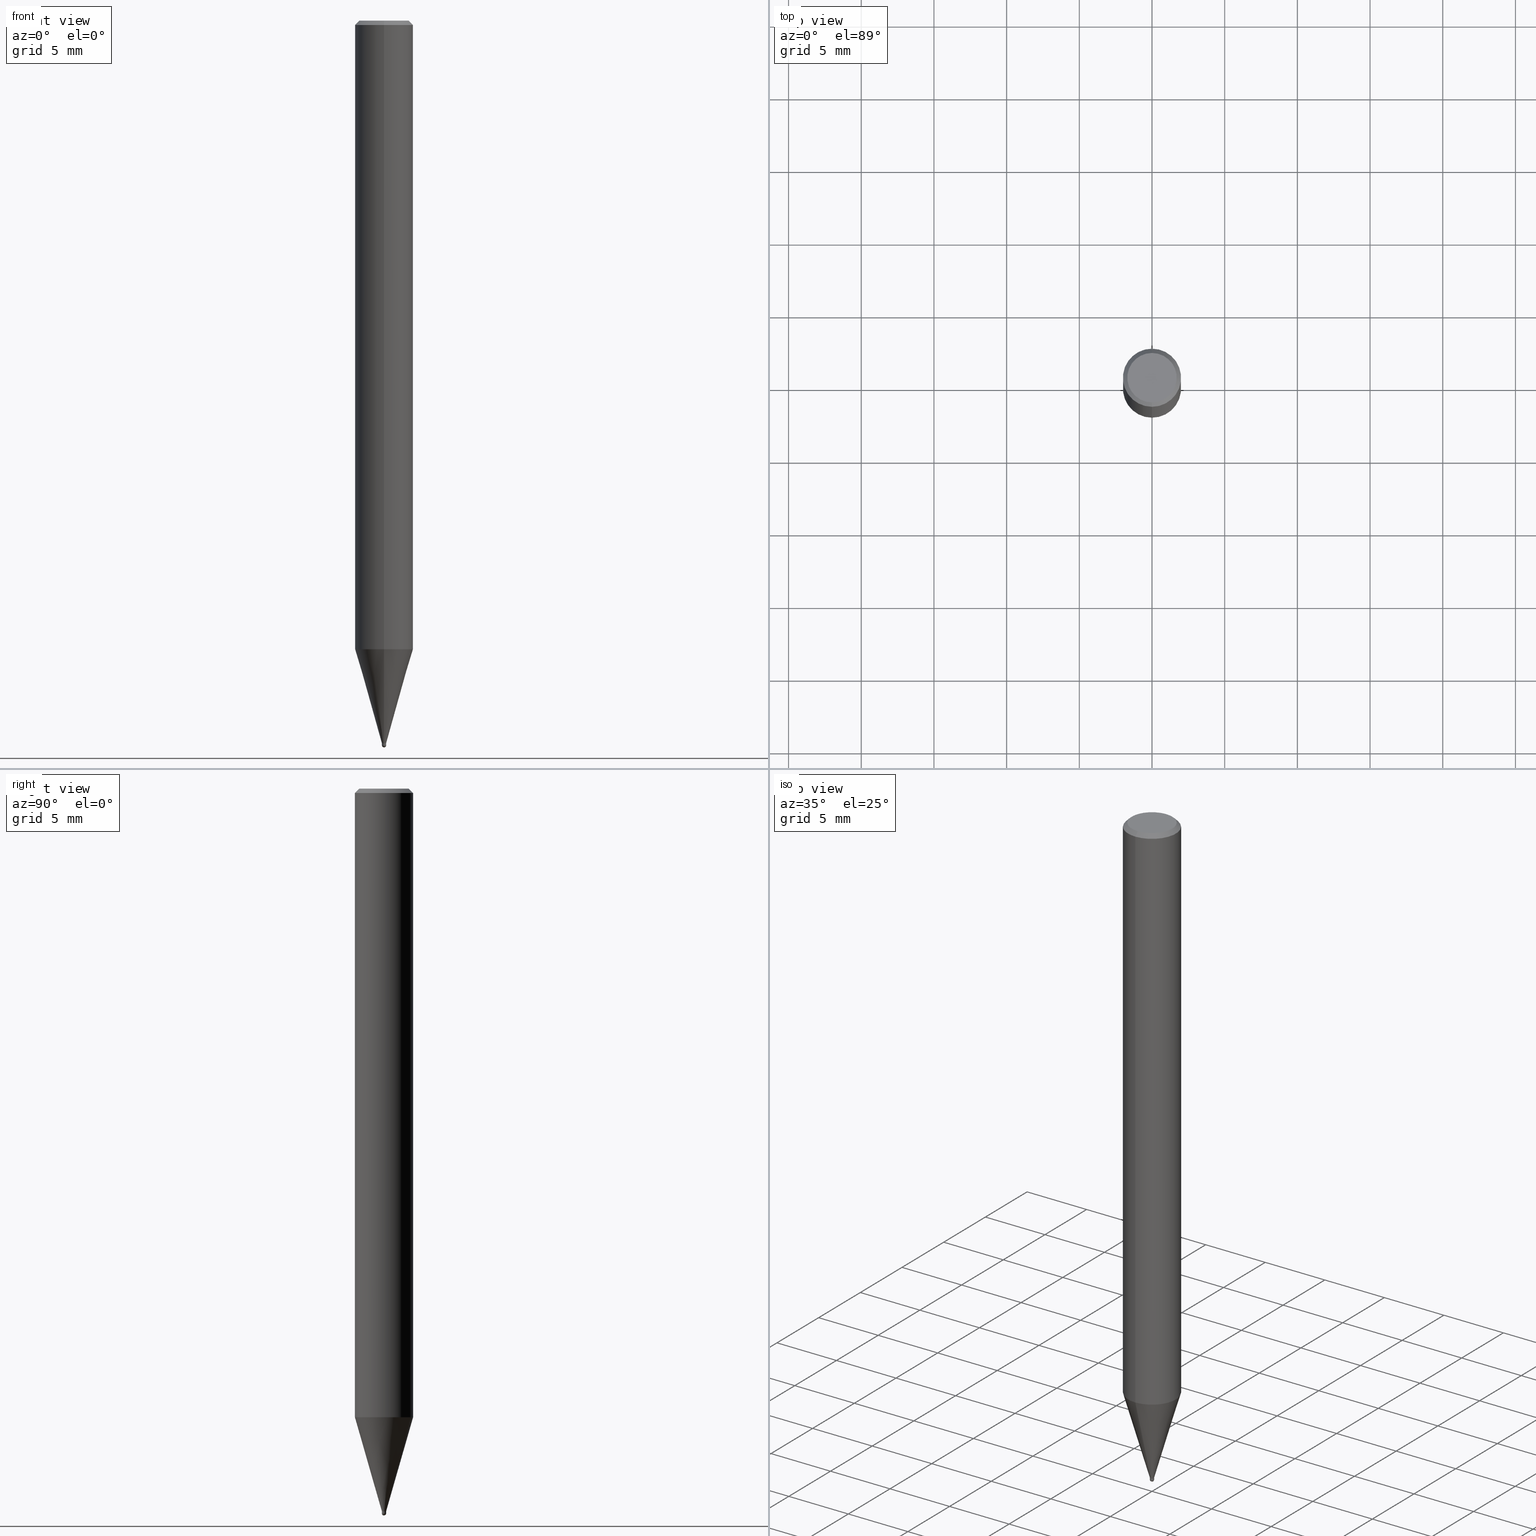
[diagram: canonical four-view strip — front | top / right | iso, engineering-drawing reading convention]
A machine part, canonical four-view strip (front | top / right | iso — engineering-drawing reading convention). The complete STEP part file that produces these views, byte-faithful:
ISO-10303-21;
HEADER;
FILE_DESCRIPTION(('no description'),'unknown implementation level');
FILE_NAME('HSB2003-0030-Huellk.stp','  ',('CIMSOURCE GmbH'),('CADClick - KiM GmbH - www.kimweb.de'),'unknown preprocess','ACIS','unknown authorization');
FILE_SCHEMA(('automotive_design'));
ENDSEC;
DATA;
#1=MECHANICAL_DESIGN_GEOMETRIC_PRESENTATION_REPRESENTATION(' ',(#14,#15,#16,#17,#18,#19,#20,#21,#22,#23,#24,#25,#26,#27,#28,#29,#30,#31,#32,#33,#34,#35,#36,#37,#38,#39,#40,#41,#42,#43,#44,#45,#46,#47,#48,#49,#50,#51,#52,#53,#54,#55,#56,#57,#58,#59,#60,#61,#62,#63,#64,#65,#66),#10);
#2=PRODUCT_DEFINITION_CONTEXT('',#67,'design');
#3=APPLICATION_PROTOCOL_DEFINITION('INTERNATIONAL STANDARD','automotive_design',1994,#67);
#4=PRODUCT_CATEGORY_RELATIONSHIP('NONE','NONE',#68,#69);
#5=SHAPE_DEFINITION_REPRESENTATION(#70,#71);
#6=PRODUCT_DEFINITION_CONTEXT('',#72,'design');
#7=APPLICATION_PROTOCOL_DEFINITION('INTERNATIONAL STANDARD','automotive_design',1994,#72);
#8=PRODUCT_CATEGORY_RELATIONSHIP('NONE','NONE',#73,#74);
#9=SHAPE_DEFINITION_REPRESENTATION(#75,#76);
#10= (GEOMETRIC_REPRESENTATION_CONTEXT(3)GLOBAL_UNCERTAINTY_ASSIGNED_CONTEXT((#79))GLOBAL_UNIT_ASSIGNED_CONTEXT((#81,#82,#83))REPRESENTATION_CONTEXT('NONE','WORKSPACE'));
#14=STYLED_ITEM('',(#85),#86);
#15=STYLED_ITEM('',(#87),#88);
#16=STYLED_ITEM('',(#89),#90);
#17=STYLED_ITEM('',(#91),#92);
#18=STYLED_ITEM('',(#93),#94);
#19=STYLED_ITEM('',(#95),#96);
#20=STYLED_ITEM('',(#97),#98);
#21=STYLED_ITEM('',(#99),#100);
#22=STYLED_ITEM('',(#101),#102);
#23=STYLED_ITEM('',(#103),#104);
#24=STYLED_ITEM('',(#105),#106);
#25=STYLED_ITEM('',(#107),#108);
#26=STYLED_ITEM('',(#109),#110);
#27=STYLED_ITEM('',(#111),#112);
#28=STYLED_ITEM('',(#113),#114);
#29=STYLED_ITEM('',(#115),#116);
#30=STYLED_ITEM('',(#117),#118);
#31=STYLED_ITEM('',(#119),#120);
#32=STYLED_ITEM('',(#121),#122);
#33=STYLED_ITEM('',(#123),#124);
#34=STYLED_ITEM('',(#125),#126);
#35=STYLED_ITEM('',(#127),#128);
#36=STYLED_ITEM('',(#129),#130);
#37=STYLED_ITEM('',(#131),#132);
#38=STYLED_ITEM('',(#133),#134);
#39=STYLED_ITEM('',(#135),#136);
#40=STYLED_ITEM('',(#137),#138);
#41=STYLED_ITEM('',(#139),#140);
#42=STYLED_ITEM('',(#141),#142);
#43=STYLED_ITEM('',(#143),#144);
#44=STYLED_ITEM('',(#145),#146);
#45=STYLED_ITEM('',(#147),#148);
#46=STYLED_ITEM('',(#149),#150);
#47=STYLED_ITEM('',(#151),#152);
#48=STYLED_ITEM('',(#153),#154);
#49=STYLED_ITEM('',(#155),#156);
#50=STYLED_ITEM('',(#157),#158);
#51=STYLED_ITEM('',(#159),#160);
#52=STYLED_ITEM('',(#161),#162);
#53=STYLED_ITEM('',(#163),#164);
#54=STYLED_ITEM('',(#165),#166);
#55=STYLED_ITEM('',(#167),#168);
#56=STYLED_ITEM('',(#169),#170);
#57=STYLED_ITEM('',(#171),#172);
#58=STYLED_ITEM('',(#173),#174);
#59=STYLED_ITEM('',(#175),#176);
#60=STYLED_ITEM('',(#177),#178);
#61=STYLED_ITEM('',(#179),#180);
#62=STYLED_ITEM('',(#181),#182);
#63=STYLED_ITEM('',(#183),#184);
#64=STYLED_ITEM('',(#185),#186);
#65=STYLED_ITEM('',(#187),#188);
#66=STYLED_ITEM('',(#189),#190);
#67=APPLICATION_CONTEXT(' ');
#68=PRODUCT_CATEGORY('part','NONE');
#69=PRODUCT_RELATED_PRODUCT_CATEGORY('detail',' ',(#191));
#70=PRODUCT_DEFINITION_SHAPE('NONE','NONE',#192);
#71=ADVANCED_BREP_SHAPE_REPRESENTATION('1',(#186,#193),#10);
#72=APPLICATION_CONTEXT(' ');
#73=PRODUCT_CATEGORY('part','NONE');
#74=PRODUCT_RELATED_PRODUCT_CATEGORY('detail',' ',(#194));
#75=PRODUCT_DEFINITION_SHAPE('NONE','NONE',#195);
#76=ADVANCED_BREP_SHAPE_REPRESENTATION('2',(#92,#196),#10);
#79=UNCERTAINTY_MEASURE_WITH_UNIT(LENGTH_MEASURE(1.0E-006),#81,'','');
#81= (CONVERSION_BASED_UNIT('MILLIMETRE',#199)LENGTH_UNIT()NAMED_UNIT(#202));
#82= (NAMED_UNIT(#204)PLANE_ANGLE_UNIT()SI_UNIT($,.RADIAN.));
#83= (NAMED_UNIT(#204)SOLID_ANGLE_UNIT()SI_UNIT($,.STERADIAN.));
#85=PRESENTATION_STYLE_ASSIGNMENT((#210));
#86=ADVANCED_FACE('',(#211),#212,.T.);
#87=PRESENTATION_STYLE_ASSIGNMENT((#213));
#88=ADVANCED_FACE('',(#214),#215,.T.);
#89=PRESENTATION_STYLE_ASSIGNMENT((#216));
#90=EDGE_CURVE('',#118,#154,#217,.T.);
#91=PRESENTATION_STYLE_ASSIGNMENT((#218));
#92=MANIFOLD_SOLID_BREP('2',#219);
#93=PRESENTATION_STYLE_ASSIGNMENT((#220));
#94=EDGE_CURVE('',#164,#182,#221,.T.);
#95=PRESENTATION_STYLE_ASSIGNMENT((#222));
#96=ADVANCED_FACE('',(#223),#224,.T.);
#97=PRESENTATION_STYLE_ASSIGNMENT((#225));
#98=EDGE_CURVE('',#182,#126,#226,.T.);
#99=PRESENTATION_STYLE_ASSIGNMENT((#227));
#100=ADVANCED_FACE('',(#228),#229,.T.);
#101=PRESENTATION_STYLE_ASSIGNMENT((#230));
#102=EDGE_CURVE('',#160,#118,#231,.T.);
#103=PRESENTATION_STYLE_ASSIGNMENT((#232));
#104=VERTEX_POINT('',#233);
#105=PRESENTATION_STYLE_ASSIGNMENT((#234));
#106=EDGE_CURVE('',#108,#126,#235,.T.);
#107=PRESENTATION_STYLE_ASSIGNMENT((#236));
#108=VERTEX_POINT('',#237);
#109=PRESENTATION_STYLE_ASSIGNMENT((#238));
#110=VERTEX_POINT('',#239);
#111=PRESENTATION_STYLE_ASSIGNMENT((#240));
#112=ADVANCED_FACE('',(#241,#242),#243,.T.);
#113=PRESENTATION_STYLE_ASSIGNMENT((#244));
#114=EDGE_CURVE('',#178,#122,#245,.T.);
#115=PRESENTATION_STYLE_ASSIGNMENT((#246));
#116=EDGE_CURVE('',#160,#130,#247,.T.);
#117=PRESENTATION_STYLE_ASSIGNMENT((#248));
#118=VERTEX_POINT('',#249);
#119=PRESENTATION_STYLE_ASSIGNMENT((#250));
#120=EDGE_CURVE('',#126,#108,#251,.T.);
#121=PRESENTATION_STYLE_ASSIGNMENT((#252));
#122=VERTEX_POINT('',#253);
#123=PRESENTATION_STYLE_ASSIGNMENT((#254));
#124=EDGE_CURVE('',#136,#110,#255,.T.);
#125=PRESENTATION_STYLE_ASSIGNMENT((#256));
#126=VERTEX_POINT('',#257);
#127=PRESENTATION_STYLE_ASSIGNMENT((#258));
#128=EDGE_CURVE('',#154,#118,#259,.T.);
#129=PRESENTATION_STYLE_ASSIGNMENT((#260));
#130=VERTEX_POINT('',#261);
#131=PRESENTATION_STYLE_ASSIGNMENT((#262));
#132=EDGE_CURVE('',#110,#104,#263,.T.);
#133=PRESENTATION_STYLE_ASSIGNMENT((#264));
#134=EDGE_CURVE('',#136,#150,#265,.T.);
#135=PRESENTATION_STYLE_ASSIGNMENT((#266));
#136=VERTEX_POINT('',#267);
#137=PRESENTATION_STYLE_ASSIGNMENT((#268));
#138=ADVANCED_FACE('',(#269),#270,.T.);
#139=PRESENTATION_STYLE_ASSIGNMENT((#271));
#140=ADVANCED_FACE('',(#272),#273,.T.);
#141=PRESENTATION_STYLE_ASSIGNMENT((#274));
#142=ADVANCED_FACE('',(#275),#276,.T.);
#143=PRESENTATION_STYLE_ASSIGNMENT((#277));
#144=EDGE_CURVE('',#178,#136,#278,.T.);
#145=PRESENTATION_STYLE_ASSIGNMENT((#279));
#146=EDGE_CURVE('',#104,#150,#280,.T.);
#147=PRESENTATION_STYLE_ASSIGNMENT((#281));
#148=ADVANCED_FACE('',(#282),#283,.T.);
#149=PRESENTATION_STYLE_ASSIGNMENT((#284));
#150=VERTEX_POINT('',#285);
#151=PRESENTATION_STYLE_ASSIGNMENT((#286));
#152=EDGE_CURVE('',#182,#164,#287,.T.);
#153=PRESENTATION_STYLE_ASSIGNMENT((#288));
#154=VERTEX_POINT('',#289);
#155=PRESENTATION_STYLE_ASSIGNMENT((#290));
#156=EDGE_CURVE('',#150,#136,#291,.T.);
#157=PRESENTATION_STYLE_ASSIGNMENT((#292));
#158=EDGE_CURVE('',#160,#130,#293,.T.);
#159=PRESENTATION_STYLE_ASSIGNMENT((#294));
#160=VERTEX_POINT('',#295);
#161=PRESENTATION_STYLE_ASSIGNMENT((#296));
#162=ADVANCED_FACE('',(#297),#298,.T.);
#163=PRESENTATION_STYLE_ASSIGNMENT((#299));
#164=VERTEX_POINT('',#300);
#165=PRESENTATION_STYLE_ASSIGNMENT((#301));
#166=EDGE_CURVE('',#154,#130,#302,.T.);
#167=PRESENTATION_STYLE_ASSIGNMENT((#303));
#168=EDGE_CURVE('',#130,#160,#304,.T.);
#169=PRESENTATION_STYLE_ASSIGNMENT((#305));
#170=ADVANCED_FACE('',(#306),#307,.T.);
#171=PRESENTATION_STYLE_ASSIGNMENT((#308));
#172=ADVANCED_FACE('',(#309),#310,.T.);
#173=PRESENTATION_STYLE_ASSIGNMENT((#311));
#174=ADVANCED_FACE('',(#312),#313,.T.);
#175=PRESENTATION_STYLE_ASSIGNMENT((#314));
#176=EDGE_CURVE('',#108,#164,#315,.T.);
#177=PRESENTATION_STYLE_ASSIGNMENT((#316));
#178=VERTEX_POINT('',#317);
#179=PRESENTATION_STYLE_ASSIGNMENT((#318));
#180=EDGE_CURVE('',#104,#110,#319,.T.);
#181=PRESENTATION_STYLE_ASSIGNMENT((#320));
#182=VERTEX_POINT('',#321);
#183=PRESENTATION_STYLE_ASSIGNMENT((#322));
#184=EDGE_CURVE('',#150,#122,#323,.T.);
#185=PRESENTATION_STYLE_ASSIGNMENT((#324));
#186=MANIFOLD_SOLID_BREP('1',#325);
#187=PRESENTATION_STYLE_ASSIGNMENT((#326));
#188=EDGE_CURVE('',#122,#178,#327,.T.);
#189=PRESENTATION_STYLE_ASSIGNMENT((#328));
#190=ADVANCED_FACE('',(#329),#330,.T.);
#191=PRODUCT('1','1','PART-1-DESC',(#331));
#192=PRODUCT_DEFINITION('NONE','NONE',#332,#2);
#193=AXIS2_PLACEMENT_3D('',#333,#334,#335);
#194=PRODUCT('2','2','PART-2-DESC',(#336));
#195=PRODUCT_DEFINITION('NONE','NONE',#337,#6);
#196=AXIS2_PLACEMENT_3D('',#338,#339,#340);
#199=LENGTH_MEASURE_WITH_UNIT(LENGTH_MEASURE(1.0),#341);
#202=DIMENSIONAL_EXPONENTS(1.0,0.0,0.0,0.0,0.0,0.0,0.0);
#204=DIMENSIONAL_EXPONENTS(0.0,0.0,0.0,0.0,0.0,0.0,0.0);
#210=SURFACE_STYLE_USAGE(.BOTH.,#342);
#211=FACE_OUTER_BOUND('',#343,.T.);
#212=CONICAL_SURFACE('',#344,0.14995,0.000666666567901188);
#213=SURFACE_STYLE_USAGE(.BOTH.,#345);
#214=FACE_OUTER_BOUND('',#346,.T.);
#215=CYLINDRICAL_SURFACE('',#347,2.0);
#216=CURVE_STYLE('',#348,POSITIVE_LENGTH_MEASURE(1.0E-006),#349);
#217=CIRCLE('',#350,0.1499);
#218=SURFACE_STYLE_USAGE(.BOTH.,#351);
#219=CLOSED_SHELL('',(#100,#172,#96,#86,#174));
#220=CURVE_STYLE('',#352,POSITIVE_LENGTH_MEASURE(1.0E-006),#353);
#221=CIRCLE('',#354,1.99995);
#222=SURFACE_STYLE_USAGE(.BOTH.,#355);
#223=FACE_OUTER_BOUND('',#356,.T.);
#224=PLANE('',#357);
#225=CURVE_STYLE('',#358,POSITIVE_LENGTH_MEASURE(1.0E-006),#359);
#226=LINE('',#360,#361);
#227=SURFACE_STYLE_USAGE(.BOTH.,#362);
#228=FACE_OUTER_BOUND('',#363,.T.);
#229=SPHERICAL_SURFACE('',#364,0.15);
#230=CURVE_STYLE('',#365,POSITIVE_LENGTH_MEASURE(1.0E-006),#366);
#231=LINE('',#367,#368);
#232=POINT_STYLE(' ',#369,POSITIVE_LENGTH_MEASURE(1.0E-006),#370);
#233=CARTESIAN_POINT('',(0.0,1.7,0.0));
#234=CURVE_STYLE('',#371,POSITIVE_LENGTH_MEASURE(1.0E-006),#372);
#235=CIRCLE('',#373,0.14995);
#236=POINT_STYLE(' ',#374,POSITIVE_LENGTH_MEASURE(1.0E-006),#375);
#237=CARTESIAN_POINT('',(1.83629722755666E-017,-0.14995,-49.7));
#238=POINT_STYLE(' ',#376,POSITIVE_LENGTH_MEASURE(1.0E-006),#377);
#239=CARTESIAN_POINT('',(2.08183080149804E-016,-1.7,0.0));
#240=SURFACE_STYLE_USAGE(.BOTH.,#378);
#241=FACE_OUTER_BOUND('',#379,.T.);
#242=FACE_BOUND('',#380,.T.);
#243=PLANE('',#381);
#244=CURVE_STYLE('',#382,POSITIVE_LENGTH_MEASURE(1.0E-006),#383);
#245=CIRCLE('',#384,2.0);
#246=CURVE_STYLE('',#385,POSITIVE_LENGTH_MEASURE(1.0E-006),#386);
#247=CIRCLE('',#387,0.15);
#248=POINT_STYLE(' ',#388,POSITIVE_LENGTH_MEASURE(1.0E-006),#389);
#249=CARTESIAN_POINT('',(1.83568492437974E-017,-0.1499,-49.7));
#250=CURVE_STYLE('',#390,POSITIVE_LENGTH_MEASURE(1.0E-006),#391);
#251=CIRCLE('',#392,0.14995);
#252=POINT_STYLE(' ',#393,POSITIVE_LENGTH_MEASURE(1.0E-006),#394);
#253=CARTESIAN_POINT('',(0.0,2.0,-43.248));
#254=CURVE_STYLE('',#395,POSITIVE_LENGTH_MEASURE(1.0E-006),#396);
#255=LINE('',#397,#398);
#256=POINT_STYLE(' ',#399,POSITIVE_LENGTH_MEASURE(1.0E-006),#400);
#257=CARTESIAN_POINT('',(0.0,0.14995,-49.7));
#258=CURVE_STYLE('',#401,POSITIVE_LENGTH_MEASURE(1.0E-006),#402);
#259=CIRCLE('',#403,0.1499);
#260=POINT_STYLE(' ',#404,POSITIVE_LENGTH_MEASURE(1.0E-006),#405);
#261=CARTESIAN_POINT('',(0.0,0.15,-49.85));
#262=CURVE_STYLE('',#406,POSITIVE_LENGTH_MEASURE(1.0E-006),#407);
#263=CIRCLE('',#408,1.7);
#264=CURVE_STYLE('',#409,POSITIVE_LENGTH_MEASURE(1.0E-006),#410);
#265=CIRCLE('',#411,2.0);
#266=POINT_STYLE(' ',#412,POSITIVE_LENGTH_MEASURE(1.0E-006),#413);
#267=CARTESIAN_POINT('',(2.44921270764475E-016,-2.0,-0.299999999999997));
#268=SURFACE_STYLE_USAGE(.BOTH.,#414);
#269=FACE_OUTER_BOUND('',#415,.T.);
#270=PLANE('',#416);
#271=SURFACE_STYLE_USAGE(.BOTH.,#417);
#272=FACE_OUTER_BOUND('',#418,.T.);
#273=PLANE('',#419);
#274=SURFACE_STYLE_USAGE(.BOTH.,#420);
#275=FACE_OUTER_BOUND('',#421,.T.);
#276=CYLINDRICAL_SURFACE('',#422,2.0);
#277=CURVE_STYLE('',#423,POSITIVE_LENGTH_MEASURE(1.0E-006),#424);
#278=LINE('',#425,#426);
#279=CURVE_STYLE('',#427,POSITIVE_LENGTH_MEASURE(1.0E-006),#428);
#280=LINE('',#429,#430);
#281=SURFACE_STYLE_USAGE(.BOTH.,#431);
#282=FACE_OUTER_BOUND('',#432,.T.);
#283=CONICAL_SURFACE('',#433,1.85,0.785398163397453);
#284=POINT_STYLE(' ',#434,POSITIVE_LENGTH_MEASURE(1.0E-006),#435);
#285=CARTESIAN_POINT('',(0.0,2.0,-0.299999999999997));
#286=CURVE_STYLE('',#436,POSITIVE_LENGTH_MEASURE(1.0E-006),#437);
#287=CIRCLE('',#438,1.99995);
#288=POINT_STYLE(' ',#439,POSITIVE_LENGTH_MEASURE(1.0E-006),#440);
#289=CARTESIAN_POINT('',(0.0,0.1499,-49.7));
#290=CURVE_STYLE('',#441,POSITIVE_LENGTH_MEASURE(1.0E-006),#442);
#291=CIRCLE('',#443,2.0);
#292=CURVE_STYLE('',#444,POSITIVE_LENGTH_MEASURE(1.0E-006),#445);
#293=CIRCLE('',#446,0.15);
#294=POINT_STYLE(' ',#447,POSITIVE_LENGTH_MEASURE(1.0E-006),#448);
#295=CARTESIAN_POINT('',(1.83690953073357E-017,-0.15,-49.85));
#296=SURFACE_STYLE_USAGE(.BOTH.,#449);
#297=FACE_OUTER_BOUND('',#450,.T.);
#298=CONICAL_SURFACE('',#451,1.07495,0.279241047070178);
#299=POINT_STYLE(' ',#452,POSITIVE_LENGTH_MEASURE(1.0E-006),#453);
#300=CARTESIAN_POINT('',(2.44915147732706E-016,-1.99995,-43.248));
#301=CURVE_STYLE('',#454,POSITIVE_LENGTH_MEASURE(1.0E-006),#455);
#302=LINE('',#456,#457);
#303=CURVE_STYLE('',#458,POSITIVE_LENGTH_MEASURE(1.0E-006),#459);
#304=CIRCLE('',#460,0.15);
#305=SURFACE_STYLE_USAGE(.BOTH.,#461);
#306=FACE_OUTER_BOUND('',#462,.T.);
#307=CONICAL_SURFACE('',#463,1.07495,0.279241047070178);
#308=SURFACE_STYLE_USAGE(.BOTH.,#464);
#309=FACE_OUTER_BOUND('',#465,.T.);
#310=CONICAL_SURFACE('',#466,0.14995,0.000666666567901188);
#311=SURFACE_STYLE_USAGE(.BOTH.,#467);
#312=FACE_OUTER_BOUND('',#468,.T.);
#313=SPHERICAL_SURFACE('',#469,0.15);
#314=CURVE_STYLE('',#470,POSITIVE_LENGTH_MEASURE(1.0E-006),#471);
#315=LINE('',#472,#473);
#316=POINT_STYLE(' ',#474,POSITIVE_LENGTH_MEASURE(1.0E-006),#475);
#317=CARTESIAN_POINT('',(2.44921270764475E-016,-2.0,-43.248));
#318=CURVE_STYLE('',#476,POSITIVE_LENGTH_MEASURE(1.0E-006),#477);
#319=CIRCLE('',#478,1.7);
#320=POINT_STYLE(' ',#479,POSITIVE_LENGTH_MEASURE(1.0E-006),#480);
#321=CARTESIAN_POINT('',(0.0,1.99995,-43.248));
#322=CURVE_STYLE('',#481,POSITIVE_LENGTH_MEASURE(1.0E-006),#482);
#323=LINE('',#483,#484);
#324=SURFACE_STYLE_USAGE(.BOTH.,#485);
#325=CLOSED_SHELL('',(#162,#142,#148,#112,#138,#190,#88,#170,#140));
#326=CURVE_STYLE('',#486,POSITIVE_LENGTH_MEASURE(1.0E-006),#487);
#327=CIRCLE('',#488,2.0);
#328=SURFACE_STYLE_USAGE(.BOTH.,#489);
#329=FACE_OUTER_BOUND('',#490,.T.);
#330=CONICAL_SURFACE('',#491,1.85,0.785398163397453);
#331=PRODUCT_CONTEXT('',#67,'mechanical');
#332=PRODUCT_DEFINITION_FORMATION_WITH_SPECIFIED_SOURCE(' ','NONE',#191,.NOT_KNOWN.);
#333=CARTESIAN_POINT('',(0.0,0.0,0.0));
#334=DIRECTION('',(0.0,0.0,1.0));
#335=DIRECTION('',(1.0,0.0,0.0));
#336=PRODUCT_CONTEXT('',#72,'mechanical');
#337=PRODUCT_DEFINITION_FORMATION_WITH_SPECIFIED_SOURCE(' ','NONE',#194,.NOT_KNOWN.);
#338=CARTESIAN_POINT('',(0.0,0.0,0.0));
#339=DIRECTION('',(0.0,0.0,1.0));
#340=DIRECTION('',(1.0,0.0,0.0));
#341= (NAMED_UNIT(#202)LENGTH_UNIT()SI_UNIT(.MILLI.,.METRE.));
#342=SURFACE_SIDE_STYLE('',(#493));
#343=EDGE_LOOP('',(#494,#495,#496,#497));
#344=AXIS2_PLACEMENT_3D('',#498,#499,#500);
#345=SURFACE_SIDE_STYLE('',(#501));
#346=EDGE_LOOP('',(#502,#503,#504,#505));
#347=AXIS2_PLACEMENT_3D('',#506,#507,#508);
#348=DRAUGHTING_PRE_DEFINED_CURVE_FONT('continuous');
#349=COLOUR_RGB('',0.800000011920929,0.800000011920929,0.800000011920929);
#350=AXIS2_PLACEMENT_3D('',#509,#510,#511);
#351=SURFACE_SIDE_STYLE('',(#512));
#352=DRAUGHTING_PRE_DEFINED_CURVE_FONT('continuous');
#353=COLOUR_RGB('',0.498039215803146,0.498039215803146,0.498039215803146);
#354=AXIS2_PLACEMENT_3D('',#513,#514,#515);
#355=SURFACE_SIDE_STYLE('',(#516));
#356=EDGE_LOOP('',(#517,#518));
#357=AXIS2_PLACEMENT_3D('',#519,#520,#521);
#358=DRAUGHTING_PRE_DEFINED_CURVE_FONT('continuous');
#359=COLOUR_RGB('',0.498039215803146,0.498039215803146,0.498039215803146);
#360=CARTESIAN_POINT('',(-1.31639060004136E-016,1.07495,-46.474));
#361=VECTOR('',#522,1.0);
#362=SURFACE_SIDE_STYLE('',(#523));
#363=EDGE_LOOP('',(#524,#525));
#364=AXIS2_PLACEMENT_3D('',#526,#527,#528);
#365=DRAUGHTING_PRE_DEFINED_CURVE_FONT('continuous');
#366=COLOUR_RGB('',0.800000011920929,0.800000011920929,0.800000011920929);
#367=CARTESIAN_POINT('',(1.83629722755666E-017,-0.14995,-49.775));
#368=VECTOR('',#529,1.0);
#369=PRE_DEFINED_MARKER('');
#370=COLOUR_RGB('',0.498039215803146,0.498039215803146,0.498039215803146);
#371=DRAUGHTING_PRE_DEFINED_CURVE_FONT('continuous');
#372=COLOUR_RGB('',0.498039215803146,0.498039215803146,0.498039215803146);
#373=AXIS2_PLACEMENT_3D('',#530,#531,#532);
#374=PRE_DEFINED_MARKER('');
#375=COLOUR_RGB('',0.498039215803146,0.498039215803146,0.498039215803146);
#376=PRE_DEFINED_MARKER('');
#377=COLOUR_RGB('',0.498039215803146,0.498039215803146,0.498039215803146);
#378=SURFACE_SIDE_STYLE('',(#533));
#379=EDGE_LOOP('',(#534,#535));
#380=EDGE_LOOP('',(#536,#537));
#381=AXIS2_PLACEMENT_3D('',#538,#539,#540);
#382=DRAUGHTING_PRE_DEFINED_CURVE_FONT('continuous');
#383=COLOUR_RGB('',0.498039215803146,0.498039215803146,0.498039215803146);
#384=AXIS2_PLACEMENT_3D('',#541,#542,#543);
#385=DRAUGHTING_PRE_DEFINED_CURVE_FONT('continuous');
#386=COLOUR_RGB('',0.800000011920929,0.800000011920929,0.800000011920929);
#387=AXIS2_PLACEMENT_3D('',#544,#545,#546);
#388=PRE_DEFINED_MARKER('');
#389=COLOUR_RGB('',0.800000011920929,0.800000011920929,0.800000011920929);
#390=DRAUGHTING_PRE_DEFINED_CURVE_FONT('continuous');
#391=COLOUR_RGB('',0.498039215803146,0.498039215803146,0.498039215803146);
#392=AXIS2_PLACEMENT_3D('',#547,#548,#549);
#393=PRE_DEFINED_MARKER('');
#394=COLOUR_RGB('',0.498039215803146,0.498039215803146,0.498039215803146);
#395=DRAUGHTING_PRE_DEFINED_CURVE_FONT('continuous');
#396=COLOUR_RGB('',0.498039215803146,0.498039215803146,0.498039215803146);
#397=CARTESIAN_POINT('',(2.2655217545714E-016,-1.85,-0.149999999999999));
#398=VECTOR('',#550,1.0);
#399=PRE_DEFINED_MARKER('');
#400=COLOUR_RGB('',0.498039215803146,0.498039215803146,0.498039215803146);
#401=DRAUGHTING_PRE_DEFINED_CURVE_FONT('continuous');
#402=COLOUR_RGB('',0.800000011920929,0.800000011920929,0.800000011920929);
#403=AXIS2_PLACEMENT_3D('',#551,#552,#553);
#404=PRE_DEFINED_MARKER('');
#405=COLOUR_RGB('',0.800000011920929,0.800000011920929,0.800000011920929);
#406=DRAUGHTING_PRE_DEFINED_CURVE_FONT('continuous');
#407=COLOUR_RGB('',0.498039215803146,0.498039215803146,0.498039215803146);
#408=AXIS2_PLACEMENT_3D('',#554,#555,#556);
#409=DRAUGHTING_PRE_DEFINED_CURVE_FONT('continuous');
#410=COLOUR_RGB('',0.498039215803146,0.498039215803146,0.498039215803146);
#411=AXIS2_PLACEMENT_3D('',#557,#558,#559);
#412=PRE_DEFINED_MARKER('');
#413=COLOUR_RGB('',0.498039215803146,0.498039215803146,0.498039215803146);
#414=SURFACE_SIDE_STYLE('',(#560));
#415=EDGE_LOOP('',(#561,#562));
#416=AXIS2_PLACEMENT_3D('',#563,#564,#565);
#417=SURFACE_SIDE_STYLE('',(#566));
#418=EDGE_LOOP('',(#567,#568));
#419=AXIS2_PLACEMENT_3D('',#569,#570,#571);
#420=SURFACE_SIDE_STYLE('',(#572));
#421=EDGE_LOOP('',(#573,#574,#575,#576));
#422=AXIS2_PLACEMENT_3D('',#577,#578,#579);
#423=DRAUGHTING_PRE_DEFINED_CURVE_FONT('continuous');
#424=COLOUR_RGB('',0.498039215803146,0.498039215803146,0.498039215803146);
#425=CARTESIAN_POINT('',(2.44921270764475E-016,-2.0,-21.774));
#426=VECTOR('',#580,1.0);
#427=DRAUGHTING_PRE_DEFINED_CURVE_FONT('continuous');
#428=COLOUR_RGB('',0.498039215803146,0.498039215803146,0.498039215803146);
#429=CARTESIAN_POINT('',(-2.2655217545714E-016,1.85,-0.149999999999999));
#430=VECTOR('',#581,1.0);
#431=SURFACE_SIDE_STYLE('',(#582));
#432=EDGE_LOOP('',(#583,#584,#585,#586));
#433=AXIS2_PLACEMENT_3D('',#587,#588,#589);
#434=PRE_DEFINED_MARKER('');
#435=COLOUR_RGB('',0.498039215803146,0.498039215803146,0.498039215803146);
#436=DRAUGHTING_PRE_DEFINED_CURVE_FONT('continuous');
#437=COLOUR_RGB('',0.498039215803146,0.498039215803146,0.498039215803146);
#438=AXIS2_PLACEMENT_3D('',#590,#591,#592);
#439=PRE_DEFINED_MARKER('');
#440=COLOUR_RGB('',0.800000011920929,0.800000011920929,0.800000011920929);
#441=DRAUGHTING_PRE_DEFINED_CURVE_FONT('continuous');
#442=COLOUR_RGB('',0.498039215803146,0.498039215803146,0.498039215803146);
#443=AXIS2_PLACEMENT_3D('',#593,#594,#595);
#444=DRAUGHTING_PRE_DEFINED_CURVE_FONT('continuous');
#445=COLOUR_RGB('',0.800000011920929,0.800000011920929,0.800000011920929);
#446=AXIS2_PLACEMENT_3D('',#596,#597,#598);
#447=PRE_DEFINED_MARKER('');
#448=COLOUR_RGB('',0.800000011920929,0.800000011920929,0.800000011920929);
#449=SURFACE_SIDE_STYLE('',(#599));
#450=EDGE_LOOP('',(#600,#601,#602,#603));
#451=AXIS2_PLACEMENT_3D('',#604,#605,#606);
#452=PRE_DEFINED_MARKER('');
#453=COLOUR_RGB('',0.498039215803146,0.498039215803146,0.498039215803146);
#454=DRAUGHTING_PRE_DEFINED_CURVE_FONT('continuous');
#455=COLOUR_RGB('',0.800000011920929,0.800000011920929,0.800000011920929);
#456=CARTESIAN_POINT('',(-1.83629722755666E-017,0.14995,-49.775));
#457=VECTOR('',#607,1.0);
#458=DRAUGHTING_PRE_DEFINED_CURVE_FONT('continuous');
#459=COLOUR_RGB('',0.800000011920929,0.800000011920929,0.800000011920929);
#460=AXIS2_PLACEMENT_3D('',#608,#609,#610);
#461=SURFACE_SIDE_STYLE('',(#611));
#462=EDGE_LOOP('',(#612,#613,#614,#615));
#463=AXIS2_PLACEMENT_3D('',#616,#617,#618);
#464=SURFACE_SIDE_STYLE('',(#619));
#465=EDGE_LOOP('',(#620,#621,#622,#623));
#466=AXIS2_PLACEMENT_3D('',#624,#625,#626);
#467=SURFACE_SIDE_STYLE('',(#627));
#468=EDGE_LOOP('',(#628,#629));
#469=AXIS2_PLACEMENT_3D('',#630,#631,#632);
#470=DRAUGHTING_PRE_DEFINED_CURVE_FONT('continuous');
#471=COLOUR_RGB('',0.498039215803146,0.498039215803146,0.498039215803146);
#472=CARTESIAN_POINT('',(1.31639060004136E-016,-1.07495,-46.474));
#473=VECTOR('',#633,1.0);
#474=PRE_DEFINED_MARKER('');
#475=COLOUR_RGB('',0.498039215803146,0.498039215803146,0.498039215803146);
#476=DRAUGHTING_PRE_DEFINED_CURVE_FONT('continuous');
#477=COLOUR_RGB('',0.498039215803146,0.498039215803146,0.498039215803146);
#478=AXIS2_PLACEMENT_3D('',#634,#635,#636);
#479=PRE_DEFINED_MARKER('');
#480=COLOUR_RGB('',0.498039215803146,0.498039215803146,0.498039215803146);
#481=DRAUGHTING_PRE_DEFINED_CURVE_FONT('continuous');
#482=COLOUR_RGB('',0.498039215803146,0.498039215803146,0.498039215803146);
#483=CARTESIAN_POINT('',(-2.44921270764475E-016,2.0,-21.774));
#484=VECTOR('',#637,1.0);
#485=SURFACE_SIDE_STYLE('',(#638));
#486=DRAUGHTING_PRE_DEFINED_CURVE_FONT('continuous');
#487=COLOUR_RGB('',0.498039215803146,0.498039215803146,0.498039215803146);
#488=AXIS2_PLACEMENT_3D('',#639,#640,#641);
#489=SURFACE_SIDE_STYLE('',(#642));
#490=EDGE_LOOP('',(#643,#644,#645,#646));
#491=AXIS2_PLACEMENT_3D('',#647,#648,#649);
#493=SURFACE_STYLE_FILL_AREA(#650);
#494=ORIENTED_EDGE('',*,*,#166,.T.);
#495=ORIENTED_EDGE('',*,*,#116,.F.);
#496=ORIENTED_EDGE('',*,*,#102,.T.);
#497=ORIENTED_EDGE('',*,*,#90,.T.);
#498=CARTESIAN_POINT('',(0.0,0.0,-49.775));
#499=DIRECTION('',(0.0,-0.0,-1.0));
#500=DIRECTION('',(0.0,1.0,0.0));
#501=SURFACE_STYLE_FILL_AREA(#651);
#502=ORIENTED_EDGE('',*,*,#184,.T.);
#503=ORIENTED_EDGE('',*,*,#114,.F.);
#504=ORIENTED_EDGE('',*,*,#144,.T.);
#505=ORIENTED_EDGE('',*,*,#134,.T.);
#506=CARTESIAN_POINT('',(0.0,0.0,-21.774));
#507=DIRECTION('',(-0.0,-0.0,1.0));
#508=DIRECTION('',(0.0,1.0,0.0));
#509=CARTESIAN_POINT('',(0.0,0.0,-49.7));
#510=DIRECTION('',(0.0,0.0,-1.0));
#511=DIRECTION('',(0.0,1.0,0.0));
#512=SURFACE_STYLE_FILL_AREA(#652);
#513=CARTESIAN_POINT('',(0.0,0.0,-43.248));
#514=DIRECTION('',(0.0,0.0,-1.0));
#515=DIRECTION('',(0.0,1.0,0.0));
#516=SURFACE_STYLE_FILL_AREA(#653);
#517=ORIENTED_EDGE('',*,*,#128,.F.);
#518=ORIENTED_EDGE('',*,*,#90,.F.);
#519=CARTESIAN_POINT('',(0.0,0.07495,-49.7));
#520=DIRECTION('',(-0.0,0.0,1.0));
#521=DIRECTION('',(0.0,-1.0,0.0));
#522=DIRECTION('',(3.37533562982631E-017,-0.275626173201767,-0.961264902431244));
#523=SURFACE_STYLE_FILL_AREA(#654);
#524=ORIENTED_EDGE('',*,*,#158,.F.);
#525=ORIENTED_EDGE('',*,*,#116,.T.);
#526=CARTESIAN_POINT('',(0.0,0.0,-49.85));
#527=DIRECTION('',(0.0,1.0,0.0));
#528=DIRECTION('',(0.0,0.0,-1.0));
#529=DIRECTION('',(-8.16404054458392E-020,0.000666666518518495,0.999999777777852));
#530=CARTESIAN_POINT('',(0.0,0.0,-49.7));
#531=DIRECTION('',(0.0,0.0,-1.0));
#532=DIRECTION('',(0.0,1.0,0.0));
#533=SURFACE_STYLE_FILL_AREA(#655);
#534=ORIENTED_EDGE('',*,*,#188,.T.);
#535=ORIENTED_EDGE('',*,*,#114,.T.);
#536=ORIENTED_EDGE('',*,*,#152,.F.);
#537=ORIENTED_EDGE('',*,*,#94,.F.);
#538=CARTESIAN_POINT('',(0.0,1.0,-43.248));
#539=DIRECTION('',(0.0,0.0,-1.0));
#540=DIRECTION('',(0.0,1.0,0.0));
#541=CARTESIAN_POINT('',(0.0,0.0,-43.248));
#542=DIRECTION('',(0.0,0.0,-1.0));
#543=DIRECTION('',(0.0,1.0,0.0));
#544=CARTESIAN_POINT('',(0.0,0.0,-49.85));
#545=DIRECTION('',(0.0,0.0,-1.0));
#546=DIRECTION('',(0.0,1.0,0.0));
#547=CARTESIAN_POINT('',(0.0,0.0,-49.7));
#548=DIRECTION('',(0.0,0.0,-1.0));
#549=DIRECTION('',(0.0,1.0,0.0));
#550=DIRECTION('',(-8.6592745707194E-017,0.707106781186551,0.707106781186544));
#551=CARTESIAN_POINT('',(0.0,0.0,-49.7));
#552=DIRECTION('',(0.0,0.0,-1.0));
#553=DIRECTION('',(0.0,1.0,0.0));
#554=CARTESIAN_POINT('',(0.0,0.0,0.0));
#555=DIRECTION('',(0.0,0.0,-1.0));
#556=DIRECTION('',(0.0,1.0,0.0));
#557=CARTESIAN_POINT('',(0.0,0.0,-0.299999999999997));
#558=DIRECTION('',(0.0,0.0,-1.0));
#559=DIRECTION('',(0.0,1.0,0.0));
#560=SURFACE_STYLE_FILL_AREA(#656);
#561=ORIENTED_EDGE('',*,*,#180,.F.);
#562=ORIENTED_EDGE('',*,*,#132,.F.);
#563=CARTESIAN_POINT('',(0.0,0.85,0.0));
#564=DIRECTION('',(-0.0,0.0,1.0));
#565=DIRECTION('',(0.0,-1.0,0.0));
#566=SURFACE_STYLE_FILL_AREA(#657);
#567=ORIENTED_EDGE('',*,*,#120,.T.);
#568=ORIENTED_EDGE('',*,*,#106,.T.);
#569=CARTESIAN_POINT('',(0.0,0.074975,-49.7));
#570=DIRECTION('',(0.0,0.0,-1.0));
#571=DIRECTION('',(0.0,1.0,0.0));
#572=SURFACE_STYLE_FILL_AREA(#658);
#573=ORIENTED_EDGE('',*,*,#184,.F.);
#574=ORIENTED_EDGE('',*,*,#156,.T.);
#575=ORIENTED_EDGE('',*,*,#144,.F.);
#576=ORIENTED_EDGE('',*,*,#188,.F.);
#577=CARTESIAN_POINT('',(0.0,0.0,-21.774));
#578=DIRECTION('',(-0.0,-0.0,1.0));
#579=DIRECTION('',(0.0,1.0,0.0));
#580=DIRECTION('',(-0.0,-0.0,1.0));
#581=DIRECTION('',(-8.6592745707194E-017,0.707106781186551,-0.707106781186544));
#582=SURFACE_STYLE_FILL_AREA(#659);
#583=ORIENTED_EDGE('',*,*,#146,.F.);
#584=ORIENTED_EDGE('',*,*,#180,.T.);
#585=ORIENTED_EDGE('',*,*,#124,.F.);
#586=ORIENTED_EDGE('',*,*,#156,.F.);
#587=CARTESIAN_POINT('',(0.0,0.0,-0.149999999999999));
#588=DIRECTION('',(0.0,-0.0,-1.0));
#589=DIRECTION('',(0.0,1.0,0.0));
#590=CARTESIAN_POINT('',(0.0,0.0,-43.248));
#591=DIRECTION('',(0.0,0.0,-1.0));
#592=DIRECTION('',(0.0,1.0,0.0));
#593=CARTESIAN_POINT('',(0.0,0.0,-0.299999999999997));
#594=DIRECTION('',(0.0,0.0,-1.0));
#595=DIRECTION('',(0.0,1.0,0.0));
#596=CARTESIAN_POINT('',(0.0,0.0,-49.85));
#597=DIRECTION('',(1.0,0.0,1.22460635382239E-016));
#598=DIRECTION('',(-1.22460635382239E-016,0.0,1.0));
#599=SURFACE_STYLE_FILL_AREA(#660);
#600=ORIENTED_EDGE('',*,*,#98,.F.);
#601=ORIENTED_EDGE('',*,*,#152,.T.);
#602=ORIENTED_EDGE('',*,*,#176,.F.);
#603=ORIENTED_EDGE('',*,*,#120,.F.);
#604=CARTESIAN_POINT('',(0.0,0.0,-46.474));
#605=DIRECTION('',(-0.0,-0.0,1.0));
#606=DIRECTION('',(0.0,1.0,0.0));
#607=DIRECTION('',(-8.16404054458392E-020,0.000666666518518495,-0.999999777777852));
#608=CARTESIAN_POINT('',(0.0,0.0,-49.85));
#609=DIRECTION('',(0.0,0.0,-1.0));
#610=DIRECTION('',(0.0,1.0,0.0));
#611=SURFACE_STYLE_FILL_AREA(#661);
#612=ORIENTED_EDGE('',*,*,#98,.T.);
#613=ORIENTED_EDGE('',*,*,#106,.F.);
#614=ORIENTED_EDGE('',*,*,#176,.T.);
#615=ORIENTED_EDGE('',*,*,#94,.T.);
#616=CARTESIAN_POINT('',(0.0,0.0,-46.474));
#617=DIRECTION('',(-0.0,-0.0,1.0));
#618=DIRECTION('',(0.0,1.0,0.0));
#619=SURFACE_STYLE_FILL_AREA(#662);
#620=ORIENTED_EDGE('',*,*,#166,.F.);
#621=ORIENTED_EDGE('',*,*,#128,.T.);
#622=ORIENTED_EDGE('',*,*,#102,.F.);
#623=ORIENTED_EDGE('',*,*,#168,.F.);
#624=CARTESIAN_POINT('',(0.0,0.0,-49.775));
#625=DIRECTION('',(0.0,-0.0,-1.0));
#626=DIRECTION('',(0.0,1.0,0.0));
#627=SURFACE_STYLE_FILL_AREA(#663);
#628=ORIENTED_EDGE('',*,*,#158,.T.);
#629=ORIENTED_EDGE('',*,*,#168,.T.);
#630=CARTESIAN_POINT('',(0.0,0.0,-49.85));
#631=DIRECTION('',(0.0,1.0,0.0));
#632=DIRECTION('',(0.0,0.0,-1.0));
#633=DIRECTION('',(3.37533562982631E-017,-0.275626173201767,0.961264902431244));
#634=CARTESIAN_POINT('',(0.0,0.0,0.0));
#635=DIRECTION('',(0.0,0.0,-1.0));
#636=DIRECTION('',(0.0,1.0,0.0));
#637=DIRECTION('',(0.0,0.0,-1.0));
#638=SURFACE_STYLE_FILL_AREA(#664);
#639=CARTESIAN_POINT('',(0.0,0.0,-43.248));
#640=DIRECTION('',(0.0,0.0,-1.0));
#641=DIRECTION('',(0.0,1.0,0.0));
#642=SURFACE_STYLE_FILL_AREA(#665);
#643=ORIENTED_EDGE('',*,*,#146,.T.);
#644=ORIENTED_EDGE('',*,*,#134,.F.);
#645=ORIENTED_EDGE('',*,*,#124,.T.);
#646=ORIENTED_EDGE('',*,*,#132,.T.);
#647=CARTESIAN_POINT('',(0.0,0.0,-0.149999999999999));
#648=DIRECTION('',(0.0,-0.0,-1.0));
#649=DIRECTION('',(0.0,1.0,0.0));
#650=FILL_AREA_STYLE('',(#666));
#651=FILL_AREA_STYLE('',(#667));
#652=FILL_AREA_STYLE('',(#668));
#653=FILL_AREA_STYLE('',(#669));
#654=FILL_AREA_STYLE('',(#670));
#655=FILL_AREA_STYLE('',(#671));
#656=FILL_AREA_STYLE('',(#672));
#657=FILL_AREA_STYLE('',(#673));
#658=FILL_AREA_STYLE('',(#674));
#659=FILL_AREA_STYLE('',(#675));
#660=FILL_AREA_STYLE('',(#676));
#661=FILL_AREA_STYLE('',(#677));
#662=FILL_AREA_STYLE('',(#678));
#663=FILL_AREA_STYLE('',(#679));
#664=FILL_AREA_STYLE('',(#680));
#665=FILL_AREA_STYLE('',(#681));
#666=FILL_AREA_STYLE_COLOUR('',#682);
#667=FILL_AREA_STYLE_COLOUR('',#683);
#668=FILL_AREA_STYLE_COLOUR('',#684);
#669=FILL_AREA_STYLE_COLOUR('',#685);
#670=FILL_AREA_STYLE_COLOUR('',#686);
#671=FILL_AREA_STYLE_COLOUR('',#687);
#672=FILL_AREA_STYLE_COLOUR('',#688);
#673=FILL_AREA_STYLE_COLOUR('',#689);
#674=FILL_AREA_STYLE_COLOUR('',#690);
#675=FILL_AREA_STYLE_COLOUR('',#691);
#676=FILL_AREA_STYLE_COLOUR('',#692);
#677=FILL_AREA_STYLE_COLOUR('',#693);
#678=FILL_AREA_STYLE_COLOUR('',#694);
#679=FILL_AREA_STYLE_COLOUR('',#695);
#680=FILL_AREA_STYLE_COLOUR('',#696);
#681=FILL_AREA_STYLE_COLOUR('',#697);
#682=COLOUR_RGB('',0.800000011920929,0.800000011920929,0.800000011920929);
#683=COLOUR_RGB('',0.498039215803146,0.498039215803146,0.498039215803146);
#684=COLOUR_RGB('',0.800000011920929,0.800000011920929,0.800000011920929);
#685=COLOUR_RGB('',0.800000011920929,0.800000011920929,0.800000011920929);
#686=COLOUR_RGB('',0.800000011920929,0.800000011920929,0.800000011920929);
#687=COLOUR_RGB('',0.498039215803146,0.498039215803146,0.498039215803146);
#688=COLOUR_RGB('',0.498039215803146,0.498039215803146,0.498039215803146);
#689=COLOUR_RGB('',0.498039215803146,0.498039215803146,0.498039215803146);
#690=COLOUR_RGB('',0.498039215803146,0.498039215803146,0.498039215803146);
#691=COLOUR_RGB('',0.498039215803146,0.498039215803146,0.498039215803146);
#692=COLOUR_RGB('',0.498039215803146,0.498039215803146,0.498039215803146);
#693=COLOUR_RGB('',0.498039215803146,0.498039215803146,0.498039215803146);
#694=COLOUR_RGB('',0.800000011920929,0.800000011920929,0.800000011920929);
#695=COLOUR_RGB('',0.800000011920929,0.800000011920929,0.800000011920929);
#696=COLOUR_RGB('',0.498039215803146,0.498039215803146,0.498039215803146);
#697=COLOUR_RGB('',0.498039215803146,0.498039215803146,0.498039215803146);
#698=AXIS2_PLACEMENT_3D('PCS',#699,#700,#701);
#699=CARTESIAN_POINT('',(0.0,0.0,0.0));
#700=DIRECTION('',(0.0,0.0,1.0));
#701=DIRECTION('',(1.0,0.0,0.0));
#702=AXIS2_PLACEMENT_3D('CIP',#703,#704,#705);
#703=CARTESIAN_POINT('',(0.0,0.0,-50.0));
#704=DIRECTION('',(0.0,0.0,1.0));
#705=DIRECTION('',(1.0,0.0,0.0));
#706=AXIS2_PLACEMENT_3D('CRP',#707,#708,#709);
#707=CARTESIAN_POINT('',(-0.15,0.0,-50.0));
#708=DIRECTION('',(0.0,0.0,1.0));
#709=DIRECTION('',(1.0,0.0,0.0));
#710=AXIS2_PLACEMENT_3D('MCS',#711,#712,#713);
#711=CARTESIAN_POINT('',(0.0,0.0,-43.248));
#712=DIRECTION('',(0.0,0.0,1.0));
#713=DIRECTION('',(1.0,0.0,0.0));
#714=CONSTRUCTIVE_GEOMETRY_REPRESENTATION_RELATIONSHIP('coordinate systems',$,#71,#715);
#715=CONSTRUCTIVE_GEOMETRY_REPRESENTATION('coordinate systems',(#698,#702,#706,#710),#10);
ENDSEC;
END-ISO-10303-21;
